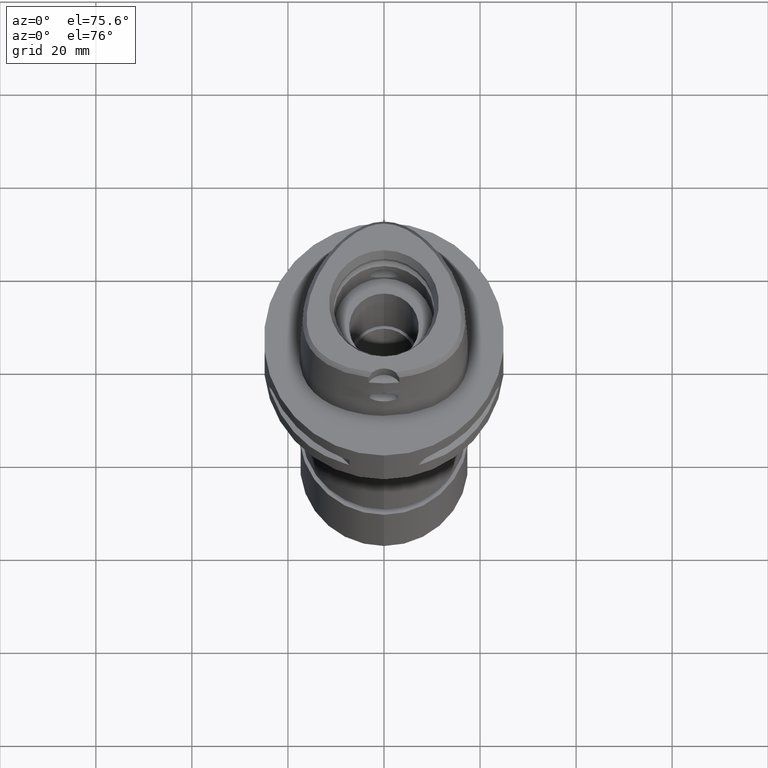
[diagram: clean part render]
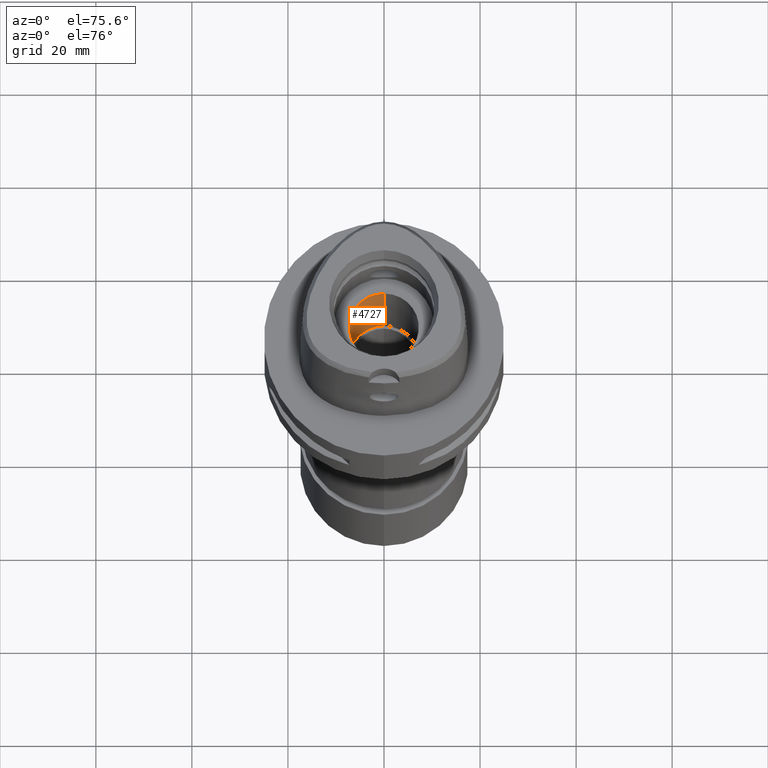
[diagram: same view with one face highlighted and labeled with its STEP entity id]
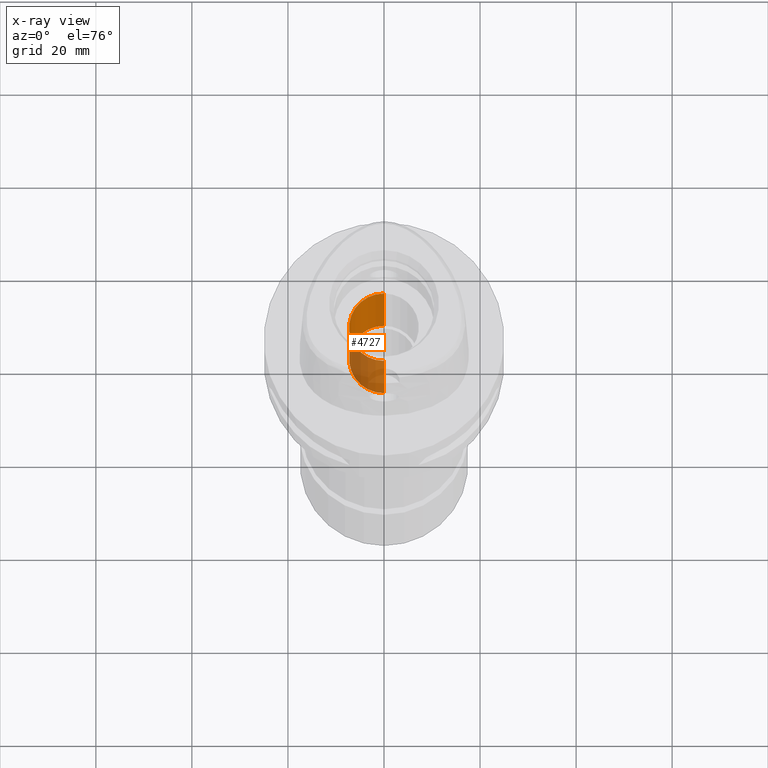
[diagram: x-ray of the same camera — body ghosted, the highlighted face saturated]
A machine part, auxiliary view. The second image highlights one B-rep face of the part: STEP entity #4727.
The next image is the same camera in x-ray: the body ghosted, the highlighted face saturated — about 50% of this face is hidden behind the body in this view.
In plain terms, the highlighted cylindrical surface (edge-blend (fillet) strip) has radius 7.25 mm, axis along (0, 0, -1).
Its self-contained STEP definition (entity closure, byte-faithful):
#119 = LINE ( 'NONE', #1876, #4181 ) ;
#382 = EDGE_CURVE ( 'NONE', #570, #524, #692, .T. ) ;
#459 = DIRECTION ( 'NONE',  ( 0.0000000000000000000, 1.000000000000000000, 0.0000000000000000000 ) ) ;
#500 = VERTEX_POINT ( 'NONE', #2618 ) ;
#524 = VERTEX_POINT ( 'NONE', #658 ) ;
#570 = VERTEX_POINT ( 'NONE', #4168 ) ;
#658 = CARTESIAN_POINT ( 'NONE',  ( 0.0000000000000000000, -7.250000000000000000, 10.00000000000000000 ) ) ;
#692 = CIRCLE ( 'NONE', #3532, 7.250000000000000000 ) ;
#742 = FACE_OUTER_BOUND ( 'NONE', #4273, .T. ) ;
#1046 = CIRCLE ( 'NONE', #2432, 7.250000000000000000 ) ;
#1091 = DIRECTION ( 'NONE',  ( 0.0000000000000000000, -1.000000000000000000, 0.0000000000000000000 ) ) ;
#1395 = DIRECTION ( 'NONE',  ( 0.0000000000000000000, -1.000000000000000000, 0.0000000000000000000 ) ) ;
#1620 = DIRECTION ( 'NONE',  ( 0.0000000000000000000, 0.0000000000000000000, 1.000000000000000000 ) ) ;
#1633 = ORIENTED_EDGE ( 'NONE', *, *, #2730, .T. ) ;
#1876 = CARTESIAN_POINT ( 'NONE',  ( 0.0000000000000000000, 7.250000000000000000, -17.00000000000000000 ) ) ;
#1989 = CARTESIAN_POINT ( 'NONE',  ( 0.0000000000000000000, 1.610410540878999754E-14, 10.00000000000000000 ) ) ;
#2127 = VECTOR ( 'NONE', #3953, 1000.000000000000000 ) ;
#2265 = CARTESIAN_POINT ( 'NONE',  ( 0.0000000000000000000, 7.250000000000000000, -17.00000000000000000 ) ) ;
#2432 = AXIS2_PLACEMENT_3D ( 'NONE', #3352, #3245, #1395 ) ;
#2527 = ORIENTED_EDGE ( 'NONE', *, *, #3579, .T. ) ;
#2618 = CARTESIAN_POINT ( 'NONE',  ( 0.0000000000000000000, -7.250000000000000000, -17.00000000000000000 ) ) ;
#2660 = DIRECTION ( 'NONE',  ( 0.0000000000000000000, 0.0000000000000000000, 1.000000000000000000 ) ) ;
#2730 = EDGE_CURVE ( 'NONE', #524, #500, #3258, .T. ) ;
#2825 = VERTEX_POINT ( 'NONE', #2265 ) ;
#2839 = ORIENTED_EDGE ( 'NONE', *, *, #382, .T. ) ;
#2969 = EDGE_CURVE ( 'NONE', #2825, #570, #119, .T. ) ;
#2994 = AXIS2_PLACEMENT_3D ( 'NONE', #3411, #3038, #1091 ) ;
#3038 = DIRECTION ( 'NONE',  ( 0.0000000000000000000, 0.0000000000000000000, -1.000000000000000000 ) ) ;
#3245 = DIRECTION ( 'NONE',  ( 0.0000000000000000000, 0.0000000000000000000, -1.000000000000000000 ) ) ;
#3258 = LINE ( 'NONE', #4308, #2127 ) ;
#3352 = CARTESIAN_POINT ( 'NONE',  ( 0.0000000000000000000, 1.610410540878999754E-14, -17.00000000000000000 ) ) ;
#3380 = CYLINDRICAL_SURFACE ( 'NONE', #2994, 7.250000000000000000 ) ;
#3411 = CARTESIAN_POINT ( 'NONE',  ( 0.0000000000000000000, 1.610410540878999754E-14, 31.50000000000000000 ) ) ;
#3532 = AXIS2_PLACEMENT_3D ( 'NONE', #1989, #1620, #459 ) ;
#3579 = EDGE_CURVE ( 'NONE', #500, #2825, #1046, .T. ) ;
#3857 = ORIENTED_EDGE ( 'NONE', *, *, #2969, .T. ) ;
#3953 = DIRECTION ( 'NONE',  ( 0.0000000000000000000, 0.0000000000000000000, -1.000000000000000000 ) ) ;
#4168 = CARTESIAN_POINT ( 'NONE',  ( 0.0000000000000000000, 7.250000000000000000, 10.00000000000000000 ) ) ;
#4181 = VECTOR ( 'NONE', #2660, 1000.000000000000000 ) ;
#4273 = EDGE_LOOP ( 'NONE', ( #2839, #1633, #2527, #3857 ) ) ;
#4308 = CARTESIAN_POINT ( 'NONE',  ( 0.0000000000000000000, -7.250000000000000000, 10.00000000000000000 ) ) ;
#4727 = ADVANCED_FACE ( 'NONE', ( #742 ), #3380, .F. ) ;